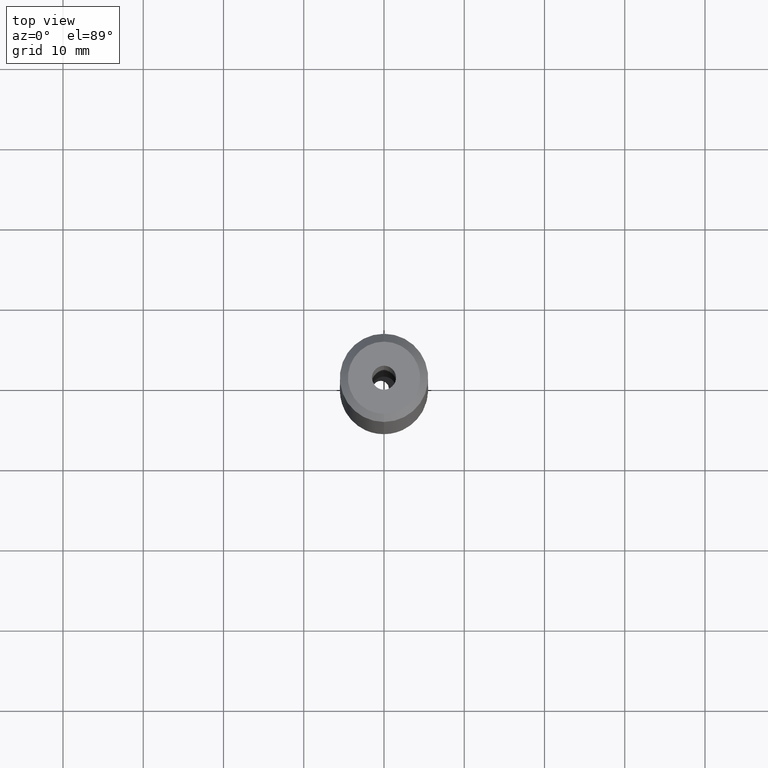
[diagram: clean part render]
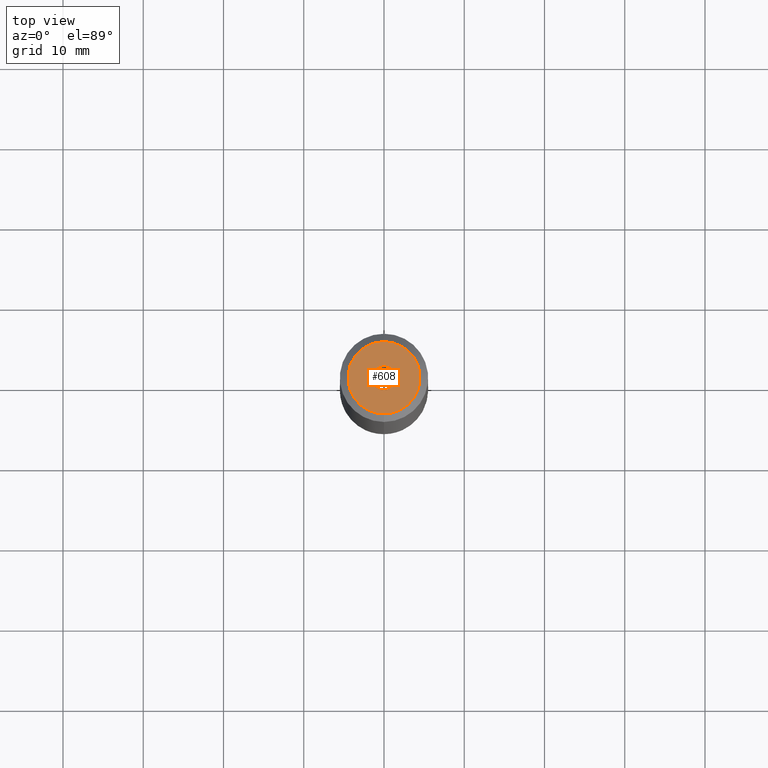
[diagram: same view with one face highlighted and labeled with its STEP entity id]
A machine part, top view. The second image highlights one B-rep face of the part: STEP entity #608.
In plain terms, the highlighted planar face has unit normal (0, -0, 1).
Its self-contained STEP definition (entity closure, byte-faithful):
#396=EDGE_CURVE('NONE',#570,#820,#1002,.T.);
#570=VERTEX_POINT('NONE',#1192);
#584=EDGE_CURVE('NONE',#592,#622,#1206,.T.);
#592=VERTEX_POINT('NONE',#1215);
#608=ADVANCED_FACE('NONE',(#1233,#1234),#1235,.T.);
#622=VERTEX_POINT('NONE',#1252);
#682=EDGE_CURVE('NONE',#820,#570,#1317,.T.);
#820=VERTEX_POINT('NONE',#1475);
#896=EDGE_CURVE('NONE',#622,#592,#1554,.T.);
#1002=CIRCLE('',#1796,1.49999999999999);
#1192=CARTESIAN_POINT('',(0.0,-1.49999999999999,77.0));
#1206=CIRCLE('',#2249,4.5);
#1215=CARTESIAN_POINT('',(-6.12323399573677E-016,4.5,77.0));
#1233=FACE_OUTER_BOUND('',#2292,.T.);
#1234=FACE_BOUND('',#2293,.T.);
#1235=PLANE('',#2294);
#1252=CARTESIAN_POINT('',(0.0,-4.5,77.0));
#1317=CIRCLE('',#2461,1.49999999999999);
#1475=CARTESIAN_POINT('',(-1.83697019872102E-016,1.49999999999999,77.0));
#1554=CIRCLE('',#2900,4.5);
#1796=AXIS2_PLACEMENT_3D('',#2981,#2982,#2983);
#2249=AXIS2_PLACEMENT_3D('',#3169,#3170,#3171);
#2292=EDGE_LOOP('',(#3216,#3217));
#2293=EDGE_LOOP('',(#3218,#3219));
#2294=AXIS2_PLACEMENT_3D('',#3220,#3221,#3222);
#2461=AXIS2_PLACEMENT_3D('',#3304,#3305,#3306);
#2900=AXIS2_PLACEMENT_3D('',#3562,#3563,#3564);
#2981=CARTESIAN_POINT('',(0.0,0.0,77.0));
#2982=DIRECTION('',(0.0,0.0,-1.0));
#2983=DIRECTION('',(0.0,-1.0,0.0));
#3169=CARTESIAN_POINT('',(0.0,0.0,77.0));
#3170=DIRECTION('',(0.0,-0.0,1.0));
#3171=DIRECTION('',(0.0,1.0,0.0));
#3216=ORIENTED_EDGE('',*,*,#896,.T.);
#3217=ORIENTED_EDGE('',*,*,#584,.T.);
#3218=ORIENTED_EDGE('',*,*,#396,.T.);
#3219=ORIENTED_EDGE('',*,*,#682,.T.);
#3220=CARTESIAN_POINT('',(-1.49999999999999,0.0,77.0));
#3221=DIRECTION('',(0.0,-0.0,1.0));
#3222=DIRECTION('',(0.0,1.0,0.0));
#3304=CARTESIAN_POINT('',(0.0,0.0,77.0));
#3305=DIRECTION('',(0.0,0.0,-1.0));
#3306=DIRECTION('',(0.0,-1.0,0.0));
#3562=CARTESIAN_POINT('',(0.0,0.0,77.0));
#3563=DIRECTION('',(0.0,-0.0,1.0));
#3564=DIRECTION('',(0.0,1.0,0.0));